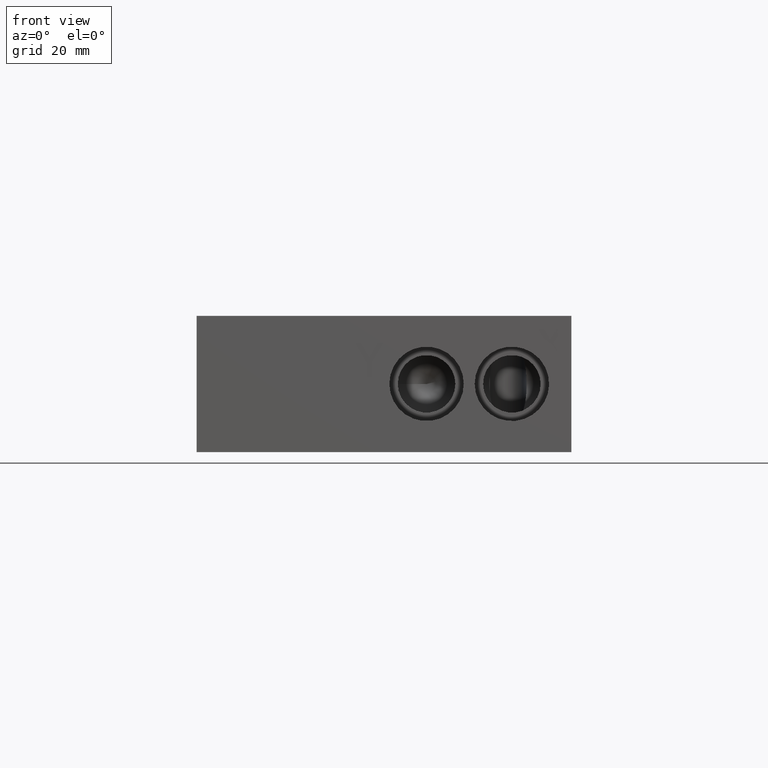
[diagram: clean part render]
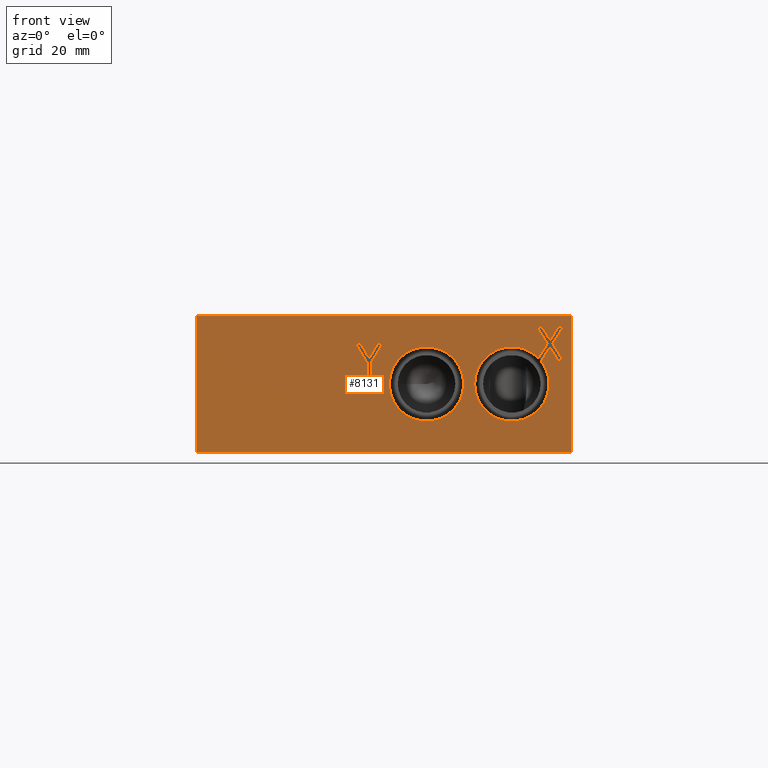
[diagram: same view with one face highlighted and labeled with its STEP entity id]
A machine part, front view. The second image highlights one B-rep face of the part: STEP entity #8131.
In plain terms, the highlighted planar face has unit normal (0, -1, 0).
Its self-contained STEP definition (entity closure, byte-faithful):
#592=FACE_BOUND('',#1522,.T.);
#593=FACE_BOUND('',#1523,.T.);
#594=FACE_BOUND('',#1524,.T.);
#639=CIRCLE('',#8522,6.9342);
#640=CIRCLE('',#8523,6.9342);
#641=CIRCLE('',#8524,6.9342);
#1068=FACE_OUTER_BOUND('',#1521,.T.);
#1521=EDGE_LOOP('',(#7157,#7158,#7159,#7160));
#1522=EDGE_LOOP('',(#7161));
#1523=EDGE_LOOP('',(#7162,#7163,#7164,#7165,#7166,#7167,#7168,#7169,#7170,
#7171,#7172,#7173,#7174,#7175));
#1524=EDGE_LOOP('',(#7176,#7177,#7178,#7179,#7180,#7181,#7182,#7183,#7184));
#1625=LINE('',#10422,#2535);
#1983=LINE('',#12002,#2893);
#2424=LINE('',#13040,#3334);
#2428=LINE('',#13048,#3338);
#2431=LINE('',#13054,#3341);
#2434=LINE('',#13060,#3344);
#2437=LINE('',#13066,#3347);
#2440=LINE('',#13072,#3350);
#2443=LINE('',#13078,#3353);
#2448=LINE('',#13087,#3358);
#2450=LINE('',#13093,#3360);
#2453=LINE('',#13099,#3363);
#2456=LINE('',#13105,#3366);
#2459=LINE('',#13110,#3369);
#2461=LINE('',#13116,#3371);
#2462=LINE('',#13117,#3372);
#2463=LINE('',#13125,#3373);
#2464=LINE('',#13127,#3374);
#2465=LINE('',#13129,#3375);
#2466=LINE('',#13131,#3376);
#2467=LINE('',#13133,#3377);
#2468=LINE('',#13135,#3378);
#2469=LINE('',#13137,#3379);
#2470=LINE('',#13139,#3380);
#2471=LINE('',#13140,#3381);
#2535=VECTOR('',#8664,10.);
#2893=VECTOR('',#9268,10.);
#3334=VECTOR('',#10035,10.);
#3338=VECTOR('',#10041,10.);
#3341=VECTOR('',#10046,10.);
#3344=VECTOR('',#10051,10.);
#3347=VECTOR('',#10056,10.);
#3350=VECTOR('',#10061,10.);
#3353=VECTOR('',#10066,10.);
#3358=VECTOR('',#10073,10.);
#3360=VECTOR('',#10077,10.);
#3363=VECTOR('',#10082,10.);
#3366=VECTOR('',#10087,10.);
#3369=VECTOR('',#10092,10.);
#3371=VECTOR('',#10100,10.);
#3372=VECTOR('',#10101,10.);
#3373=VECTOR('',#10108,10.);
#3374=VECTOR('',#10109,10.);
#3375=VECTOR('',#10110,10.);
#3376=VECTOR('',#10111,10.);
#3377=VECTOR('',#10112,10.);
#3378=VECTOR('',#10113,10.);
#3379=VECTOR('',#10114,10.);
#3380=VECTOR('',#10115,10.);
#3381=VECTOR('',#10116,10.);
#3445=VERTEX_POINT('',#10420);
#3446=VERTEX_POINT('',#10421);
#3761=VERTEX_POINT('',#12000);
#4066=VERTEX_POINT('',#13038);
#4067=VERTEX_POINT('',#13039);
#4070=VERTEX_POINT('',#13047);
#4072=VERTEX_POINT('',#13053);
#4074=VERTEX_POINT('',#13059);
#4076=VERTEX_POINT('',#13065);
#4078=VERTEX_POINT('',#13071);
#4080=VERTEX_POINT('',#13077);
#4083=VERTEX_POINT('',#13084);
#4084=VERTEX_POINT('',#13089);
#4086=VERTEX_POINT('',#13092);
#4088=VERTEX_POINT('',#13098);
#4090=VERTEX_POINT('',#13104);
#4092=VERTEX_POINT('',#13115);
#4093=VERTEX_POINT('',#13118);
#4094=VERTEX_POINT('',#13120);
#4095=VERTEX_POINT('',#13123);
#4096=VERTEX_POINT('',#13124);
#4097=VERTEX_POINT('',#13126);
#4098=VERTEX_POINT('',#13128);
#4099=VERTEX_POINT('',#13130);
#4100=VERTEX_POINT('',#13132);
#4101=VERTEX_POINT('',#13134);
#4102=VERTEX_POINT('',#13136);
#4103=VERTEX_POINT('',#13138);
#4183=EDGE_CURVE('',#3445,#3446,#1625,.T.);
#4650=EDGE_CURVE('',#3446,#3761,#1983,.T.);
#5107=EDGE_CURVE('',#4066,#4067,#2424,.T.);
#5111=EDGE_CURVE('',#4070,#4066,#2428,.T.);
#5114=EDGE_CURVE('',#4072,#4070,#2431,.T.);
#5117=EDGE_CURVE('',#4074,#4072,#2434,.T.);
#5120=EDGE_CURVE('',#4076,#4074,#2437,.T.);
#5123=EDGE_CURVE('',#4078,#4076,#2440,.T.);
#5126=EDGE_CURVE('',#4080,#4078,#2443,.T.);
#5131=EDGE_CURVE('',#4083,#4080,#2448,.T.);
#5133=EDGE_CURVE('',#4086,#4084,#2450,.T.);
#5136=EDGE_CURVE('',#4088,#4086,#2453,.T.);
#5139=EDGE_CURVE('',#4090,#4088,#2456,.T.);
#5142=EDGE_CURVE('',#4067,#4090,#2459,.T.);
#5145=EDGE_CURVE('',#4092,#3761,#2461,.T.);
#5146=EDGE_CURVE('',#3445,#4092,#2462,.T.);
#5147=EDGE_CURVE('',#4093,#4093,#639,.T.);
#5148=EDGE_CURVE('',#4084,#4094,#640,.T.);
#5149=EDGE_CURVE('',#4094,#4083,#641,.T.);
#5150=EDGE_CURVE('',#4095,#4096,#2463,.T.);
#5151=EDGE_CURVE('',#4096,#4097,#2464,.T.);
#5152=EDGE_CURVE('',#4097,#4098,#2465,.T.);
#5153=EDGE_CURVE('',#4098,#4099,#2466,.T.);
#5154=EDGE_CURVE('',#4099,#4100,#2467,.T.);
#5155=EDGE_CURVE('',#4100,#4101,#2468,.T.);
#5156=EDGE_CURVE('',#4101,#4102,#2469,.T.);
#5157=EDGE_CURVE('',#4102,#4103,#2470,.T.);
#5158=EDGE_CURVE('',#4103,#4095,#2471,.T.);
#7157=ORIENTED_EDGE('',*,*,#4183,.T.);
#7158=ORIENTED_EDGE('',*,*,#4650,.T.);
#7159=ORIENTED_EDGE('',*,*,#5145,.F.);
#7160=ORIENTED_EDGE('',*,*,#5146,.F.);
#7161=ORIENTED_EDGE('',*,*,#5147,.T.);
#7162=ORIENTED_EDGE('',*,*,#5131,.T.);
#7163=ORIENTED_EDGE('',*,*,#5126,.T.);
#7164=ORIENTED_EDGE('',*,*,#5123,.T.);
#7165=ORIENTED_EDGE('',*,*,#5120,.T.);
#7166=ORIENTED_EDGE('',*,*,#5117,.T.);
#7167=ORIENTED_EDGE('',*,*,#5114,.T.);
#7168=ORIENTED_EDGE('',*,*,#5111,.T.);
#7169=ORIENTED_EDGE('',*,*,#5107,.T.);
#7170=ORIENTED_EDGE('',*,*,#5142,.T.);
#7171=ORIENTED_EDGE('',*,*,#5139,.T.);
#7172=ORIENTED_EDGE('',*,*,#5136,.T.);
#7173=ORIENTED_EDGE('',*,*,#5133,.T.);
#7174=ORIENTED_EDGE('',*,*,#5148,.T.);
#7175=ORIENTED_EDGE('',*,*,#5149,.T.);
#7176=ORIENTED_EDGE('',*,*,#5150,.T.);
#7177=ORIENTED_EDGE('',*,*,#5151,.T.);
#7178=ORIENTED_EDGE('',*,*,#5152,.T.);
#7179=ORIENTED_EDGE('',*,*,#5153,.T.);
#7180=ORIENTED_EDGE('',*,*,#5154,.T.);
#7181=ORIENTED_EDGE('',*,*,#5155,.T.);
#7182=ORIENTED_EDGE('',*,*,#5156,.T.);
#7183=ORIENTED_EDGE('',*,*,#5157,.T.);
#7184=ORIENTED_EDGE('',*,*,#5158,.T.);
#7755=PLANE('',#8521);
#8131=ADVANCED_FACE('',(#1068,#592,#593,#594),#7755,.T.);
#8521=AXIS2_PLACEMENT_3D('',#13114,#10098,#10099);
#8522=AXIS2_PLACEMENT_3D('',#13119,#10102,#10103);
#8523=AXIS2_PLACEMENT_3D('',#13121,#10104,#10105);
#8524=AXIS2_PLACEMENT_3D('',#13122,#10106,#10107);
#8664=DIRECTION('',(1.,0.,0.));
#9268=DIRECTION('',(0.,0.,1.));
#10035=DIRECTION('',(0.524855865490427,0.,-0.851191118645099));
#10041=DIRECTION('',(-0.53597672021737,0.,-0.844232761378657));
#10046=DIRECTION('',(1.,0.,0.));
#10051=DIRECTION('',(0.527625517089337,0.,0.849477082513831));
#10056=DIRECTION('',(0.519946946895745,0.,-0.854198555614439));
#10061=DIRECTION('',(1.,0.,0.));
#10066=DIRECTION('',(-0.526021863962621,0.,0.850471045146917));
#10073=DIRECTION('',(0.536610413405564,0.,0.843830115736995));
#10077=DIRECTION('',(-1.,0.,0.));
#10082=DIRECTION('',(-0.528135980540068,0.,-0.849159811848736));
#10087=DIRECTION('',(-0.520607424264655,0.,0.853796175794037));
#10092=DIRECTION('',(-1.,0.,0.));
#10098=DIRECTION('center_axis',(0.,-1.,0.));
#10099=DIRECTION('ref_axis',(1.,0.,0.));
#10100=DIRECTION('',(1.,0.,0.));
#10101=DIRECTION('',(0.,0.,1.));
#10102=DIRECTION('center_axis',(0.,1.,0.));
#10103=DIRECTION('ref_axis',(1.,0.,0.));
#10104=DIRECTION('center_axis',(0.,1.,0.));
#10105=DIRECTION('ref_axis',(1.,0.,0.));
#10106=DIRECTION('center_axis',(0.,1.,0.));
#10107=DIRECTION('ref_axis',(1.,0.,0.));
#10108=DIRECTION('',(1.,0.,0.));
#10109=DIRECTION('',(-0.518329263750968,0.,-0.855181135397279));
#10110=DIRECTION('',(0.,0.,-1.));
#10111=DIRECTION('',(-1.,0.,0.));
#10112=DIRECTION('',(0.,0.,1.));
#10113=DIRECTION('',(-0.509099449897539,0.,0.860707703064184));
#10114=DIRECTION('',(1.,0.,0.));
#10115=DIRECTION('',(0.505352400516577,0.,-0.862913061259437));
#10116=DIRECTION('',(0.512401080946013,0.,0.858746256029893));
#10420=CARTESIAN_POINT('',(0.,0.,0.));
#10421=CARTESIAN_POINT('',(69.85,0.,0.));
#10422=CARTESIAN_POINT('',(0.,0.,0.));
#12000=CARTESIAN_POINT('',(69.85,0.,25.4));
#12002=CARTESIAN_POINT('',(69.85,0.,0.));
#13038=CARTESIAN_POINT('',(66.3685532767767,0.,20.2393127555105));
#13039=CARTESIAN_POINT('',(68.3548579471075,0.,17.018));
#13040=CARTESIAN_POINT('',(61.7481418050828,0.,27.7325189246307));
#13047=CARTESIAN_POINT('',(68.3548579471075,0.,23.3679999046326));
#13048=CARTESIAN_POINT('',(53.2497895243396,0.,-0.424439476307599));
#13053=CARTESIAN_POINT('',(67.4440394842874,0.,23.3679999046326));
#13054=CARTESIAN_POINT('',(33.7220197421437,0.,23.3679999046326));
#13059=CARTESIAN_POINT('',(65.9002793778127,0.,20.8825461332083));
#13060=CARTESIAN_POINT('',(52.0474942866017,0.,-1.42043786364141));
#13065=CARTESIAN_POINT('',(64.3873944734675,0.,23.3679999046326));
#13066=CARTESIAN_POINT('',(60.873302509669,0.,29.141150988016));
#13071=CARTESIAN_POINT('',(63.4199714734101,0.,23.3679999046326));
#13072=CARTESIAN_POINT('',(31.709985736705,0.,23.3679999046326));
#13077=CARTESIAN_POINT('',(65.3805468086329,0.,20.1981458193379));
#13078=CARTESIAN_POINT('',(60.8531663348086,0.,27.5180050631064));
#13084=CARTESIAN_POINT('',(63.7002851320608,0.,17.5559022668656));
#13087=CARTESIAN_POINT('',(50.3832543781457,0.,-3.38538273547419));
#13089=CARTESIAN_POINT('',(64.1758802006753,0.,17.018));
#13092=CARTESIAN_POINT('',(64.2690395319711,0.,17.018));
#13093=CARTESIAN_POINT('',(32.1345197659856,0.,17.018));
#13098=CARTESIAN_POINT('',(65.8436748405753,0.,19.5497665746185));
#13099=CARTESIAN_POINT('',(52.277105292297,0.,-2.26314916967217));
#13104=CARTESIAN_POINT('',(67.38743494705,0.,17.018));
#13105=CARTESIAN_POINT('',(62.0375440446419,0.,25.7918210799493));
#13110=CARTESIAN_POINT('',(34.1774289735538,0.,17.018));
#13114=CARTESIAN_POINT('Origin',(0.,0.,0.));
#13115=CARTESIAN_POINT('',(0.,0.,25.4));
#13116=CARTESIAN_POINT('',(0.,0.,25.4));
#13117=CARTESIAN_POINT('',(0.,0.,0.));
#13118=CARTESIAN_POINT('',(35.9156,0.,12.7));
#13119=CARTESIAN_POINT('Origin',(42.8498,0.,12.7));
#13120=CARTESIAN_POINT('',(51.816,0.,12.7));
#13121=CARTESIAN_POINT('Origin',(58.7502,0.,12.7));
#13122=CARTESIAN_POINT('Origin',(58.7502,0.,12.7));
#13123=CARTESIAN_POINT('',(33.8356816225896,0.,20.3199999046326));
#13124=CARTESIAN_POINT('',(34.7310624843449,0.,20.3199999046326));
#13125=CARTESIAN_POINT('',(16.9178408112948,0.,20.3199999046326));
#13126=CARTESIAN_POINT('',(32.5852359363451,0.,16.7796433937839));
#13127=CARTESIAN_POINT('',(25.5619715874193,0.,5.19209933608383));
#13128=CARTESIAN_POINT('',(32.5852359363451,0.,13.97));
#13129=CARTESIAN_POINT('',(32.5852359363451,0.,8.38982169689197));
#13130=CARTESIAN_POINT('',(31.7413137448056,0.,13.97));
#13131=CARTESIAN_POINT('',(16.2926179681725,0.,13.97));
#13132=CARTESIAN_POINT('',(31.7413137448056,0.,16.692163654417));
#13133=CARTESIAN_POINT('',(31.7413137448056,0.,6.985));
#13134=CARTESIAN_POINT('',(29.5954871968058,0.,20.3199999046326));
#13135=CARTESIAN_POINT('',(31.2850558832714,0.,17.4635348591691));
#13136=CARTESIAN_POINT('',(30.5320349947337,0.,20.3199999046326));
#13137=CARTESIAN_POINT('',(14.7977435984029,0.,20.3199999046326));
#13138=CARTESIAN_POINT('',(32.1684207075969,0.,17.5257941119134));
#13139=CARTESIAN_POINT('',(31.0639073152266,0.,19.4118028290739));
#13140=CARTESIAN_POINT('',(24.0895610291153,0.,3.98622372482842));